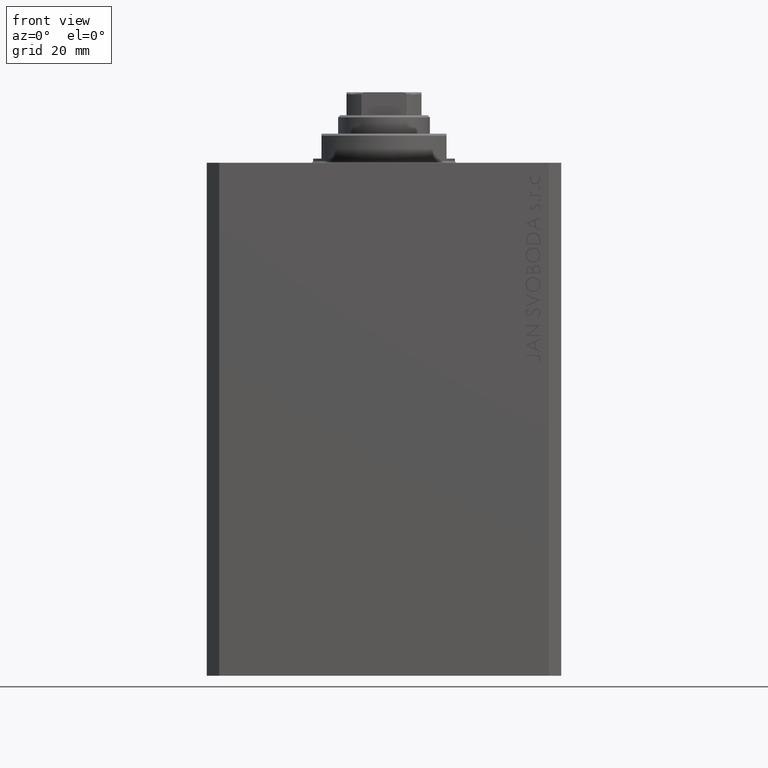
[diagram: clean part render]
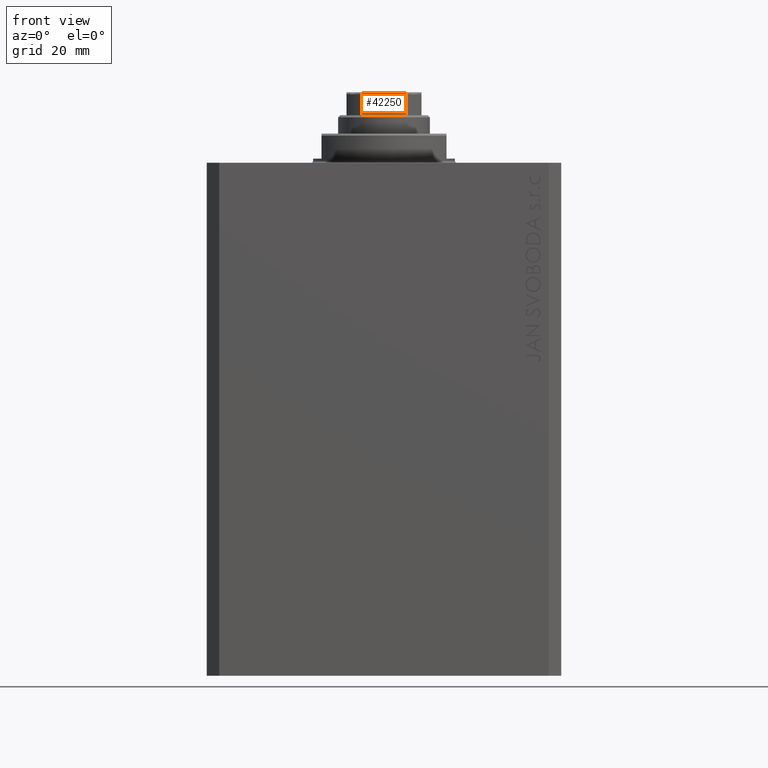
[diagram: same view with one face highlighted and labeled with its STEP entity id]
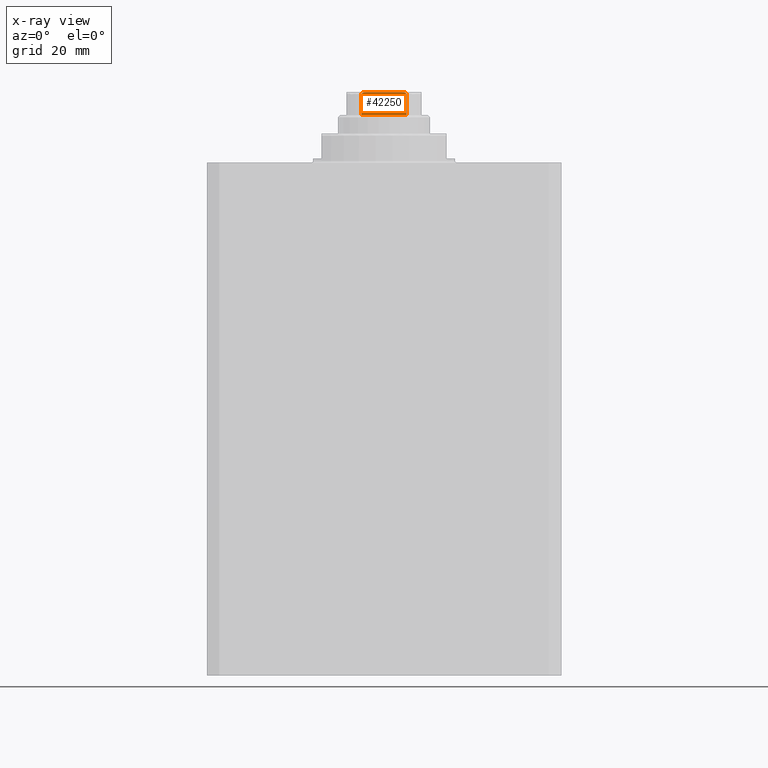
[diagram: x-ray of the same camera — body ghosted, the highlighted face saturated]
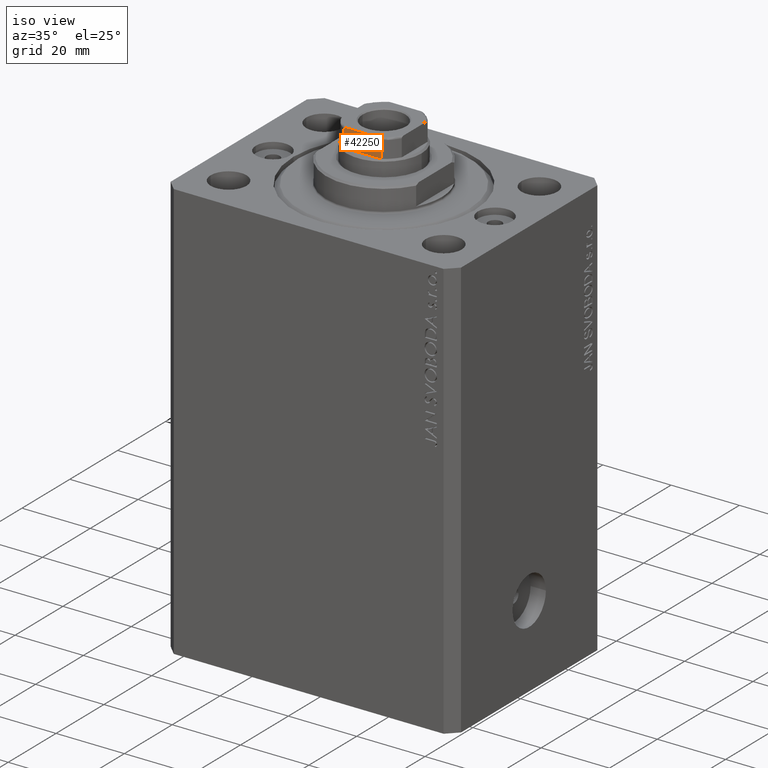
[diagram: same view with one face highlighted and labeled with its STEP entity id]
A machine part, front view. The second image highlights one B-rep face of the part: STEP entity #42250.
The next image is the same camera in x-ray: the body ghosted, the highlighted face saturated — about 0% of this face is hidden behind the body in this view.
A second angle (iso view) of the same face is appended — the face is thin or edge-on in the first view.
In plain terms, the highlighted planar face has unit normal (0, 1, 0).
Its self-contained STEP definition (entity closure, byte-faithful):
#1509 = CARTESIAN_POINT ( 'NONE',  ( 4.778533838065915695, -9.000000000000001776, 128.4778291476469860 ) ) ;
#1736 = CARTESIAN_POINT ( 'NONE',  ( 4.358898943540671311, -9.000000000000001776, 128.5000000000000000 ) ) ;
#3171 = LINE ( 'NONE', #12607, #22009 ) ;
#3395 = VERTEX_POINT ( 'NONE', #17999 ) ;
#4383 = EDGE_CURVE ( 'NONE', #9551, #31868, #3171, .T. ) ;
#4391 = B_SPLINE_CURVE_WITH_KNOTS ( 'NONE', 3,
 ( #18607, #8486, #5342, #4891, #8933, #25536, #32699, #8708, #39208, #26201 ),
 .UNSPECIFIED., .F., .F.,
 ( 4, 2, 2, 2, 4 ),
 ( 0.000000000000000000, 0.0006221106941441050886, 0.0009331660412161576872, 0.001088693714752184908, 0.001244221388288212129 ),
 .UNSPECIFIED. ) ;
#4891 = CARTESIAN_POINT ( 'NONE',  ( -5.074490744525473218, -8.999999999999998224, 128.3787200784332754 ) ) ;
#5342 = CARTESIAN_POINT ( 'NONE',  ( -4.775913644518293033, -9.000000000000001776, 128.4781460743083414 ) ) ;
#6006 = EDGE_CURVE ( 'NONE', #33273, #9551, #23713, .T. ) ;
#6590 = VECTOR ( 'NONE', #39326, 1000.000000000000000 ) ;
#7163 = LINE ( 'NONE', #13693, #13023 ) ;
#7547 = AXIS2_PLACEMENT_3D ( 'NONE', #16573, #13666, #30020 ) ;
#8374 = LINE ( 'NONE', #25648, #6590 ) ;
#8486 = CARTESIAN_POINT ( 'NONE',  ( -4.569272810556663345, -9.000000000000003553, 128.5000000000000568 ) ) ;
#8633 = CARTESIAN_POINT ( 'NONE',  ( -5.408326913195988794, -8.999999999999998224, 128.0000000000000000 ) ) ;
#8708 = CARTESIAN_POINT ( 'NONE',  ( -5.390945448132514528, -9.000000000000005329, 128.1054816538971011 ) ) ;
#8933 = CARTESIAN_POINT ( 'NONE',  ( -5.173732970196579295, -9.000000000000003553, 128.3331808643798979 ) ) ;
#9177 = CARTESIAN_POINT ( 'NONE',  ( 5.408326913195988794, -8.999999999999998224, 123.0000000000000000 ) ) ;
#9354 = CARTESIAN_POINT ( 'NONE',  ( -8.999999999999998224, -9.000000000000001776, 123.0000000000000000 ) ) ;
#9551 = VERTEX_POINT ( 'NONE', #9177 ) ;
#9684 = DIRECTION ( 'NONE',  ( -0.000000000000000000, -0.000000000000000000, 1.000000000000000000 ) ) ;
#12278 = CARTESIAN_POINT ( 'NONE',  ( 5.335664150027727537, -8.999999999999998224, 128.1951843380012974 ) ) ;
#12607 = CARTESIAN_POINT ( 'NONE',  ( 5.408326913195988794, -8.999999999999998224, -0.001000000000001000089 ) ) ;
#12880 = B_SPLINE_CURVE_WITH_KNOTS ( 'NONE', 3,
 ( #35815, #32889, #25512, #12278, #35375, #22361, #25737, #1509, #15192, #1736 ),
 .UNSPECIFIED., .F., .F.,
 ( 4, 2, 2, 2, 4 ),
 ( 0.000000000000000000, 0.0001582447020887985415, 0.0003164894041775970831, 0.0006329788083552442563, 0.001265957616710536218 ),
 .UNSPECIFIED. ) ;
#13023 = VECTOR ( 'NONE', #27361, 1000.000000000000000 ) ;
#13186 = DIRECTION ( 'NONE',  ( 1.000000000000000000, 0.000000000000000000, 0.000000000000000000 ) ) ;
#13567 = ORIENTED_EDGE ( 'NONE', *, *, #32029, .F. ) ;
#13666 = DIRECTION ( 'NONE',  ( 0.000000000000000000, 1.000000000000000000, 0.000000000000000000 ) ) ;
#13693 = CARTESIAN_POINT ( 'NONE',  ( -8.999999999999998224, -9.000000000000001776, 128.5000000000000000 ) ) ;
#13818 = CARTESIAN_POINT ( 'NONE',  ( -5.408326913195988794, -8.999999999999998224, 123.0000000000000000 ) ) ;
#15192 = CARTESIAN_POINT ( 'NONE',  ( 4.569278586016982224, -9.000000000000003553, 128.5000000000000284 ) ) ;
#16573 = CARTESIAN_POINT ( 'NONE',  ( -8.999999999999998224, -9.000000000000001776, 128.5000000000000000 ) ) ;
#17800 = ORIENTED_EDGE ( 'NONE', *, *, #32388, .F. ) ;
#17999 = CARTESIAN_POINT ( 'NONE',  ( 4.358898943540671311, -9.000000000000001776, 128.5000000000000000 ) ) ;
#18211 = CARTESIAN_POINT ( 'NONE',  ( 5.408326913195988794, -8.999999999999998224, 128.0000000000000000 ) ) ;
#18607 = CARTESIAN_POINT ( 'NONE',  ( -4.358898943540671311, -9.000000000000001776, 128.5000000000000000 ) ) ;
#18897 = EDGE_CURVE ( 'NONE', #31868, #3395, #12880, .T. ) ;
#22009 = VECTOR ( 'NONE', #9684, 1000.000000000000000 ) ;
#22361 = CARTESIAN_POINT ( 'NONE',  ( 5.174818616237112145, -9.000000000000003553, 128.3325218846533460 ) ) ;
#23713 = LINE ( 'NONE', #9354, #33497 ) ;
#23750 = ORIENTED_EDGE ( 'NONE', *, *, #18897, .T. ) ;
#24322 = ORIENTED_EDGE ( 'NONE', *, *, #43764, .T. ) ;
#25512 = CARTESIAN_POINT ( 'NONE',  ( 5.390954572107323983, -9.000000000000005329, 128.1053628521399901 ) ) ;
#25536 = CARTESIAN_POINT ( 'NONE',  ( -5.297634495023404000, -9.000000000000007105, 128.2344228052780863 ) ) ;
#25648 = CARTESIAN_POINT ( 'NONE',  ( -5.408326913195988794, -8.999999999999998224, -0.001000000000001000089 ) ) ;
#25737 = CARTESIAN_POINT ( 'NONE',  ( 5.077896145217236423, -9.000000000000003553, 128.3773016776067095 ) ) ;
#25910 = VERTEX_POINT ( 'NONE', #8633 ) ;
#26201 = CARTESIAN_POINT ( 'NONE',  ( -5.408326913195988794, -8.999999999999998224, 128.0000000000000000 ) ) ;
#27361 = DIRECTION ( 'NONE',  ( 1.000000000000000000, 0.000000000000000000, 0.000000000000000000 ) ) ;
#29659 = VERTEX_POINT ( 'NONE', #36974 ) ;
#30020 = DIRECTION ( 'NONE',  ( 0.000000000000000000, -0.000000000000000000, 1.000000000000000000 ) ) ;
#31868 = VERTEX_POINT ( 'NONE', #18211 ) ;
#32029 = EDGE_CURVE ( 'NONE', #29659, #3395, #7163, .T. ) ;
#32388 = EDGE_CURVE ( 'NONE', #33273, #25910, #8374, .T. ) ;
#32699 = CARTESIAN_POINT ( 'NONE',  ( -5.335288102212742523, -9.000000000000003553, 128.1956905402762459 ) ) ;
#32889 = CARTESIAN_POINT ( 'NONE',  ( 5.408326913195991459, -9.000000000000001776, 128.0535720727335445 ) ) ;
#33273 = VERTEX_POINT ( 'NONE', #13818 ) ;
#33497 = VECTOR ( 'NONE', #13186, 1000.000000000000000 ) ;
#33599 = FACE_OUTER_BOUND ( 'NONE', #36786, .T. ) ;
#35054 = ORIENTED_EDGE ( 'NONE', *, *, #4383, .T. ) ;
#35375 = CARTESIAN_POINT ( 'NONE',  ( 5.298186678102081437, -9.000000000000001776, 128.2338781215005099 ) ) ;
#35815 = CARTESIAN_POINT ( 'NONE',  ( 5.408326913195988794, -8.999999999999998224, 128.0000000000000000 ) ) ;
#36786 = EDGE_LOOP ( 'NONE', ( #13567, #24322, #17800, #44281, #35054, #23750 ) ) ;
#36974 = CARTESIAN_POINT ( 'NONE',  ( -4.358898943540671311, -9.000000000000001776, 128.5000000000000000 ) ) ;
#39208 = CARTESIAN_POINT ( 'NONE',  ( -5.408326913195990571, -9.000000000000003553, 128.0537434673188386 ) ) ;
#39326 = DIRECTION ( 'NONE',  ( -0.000000000000000000, -0.000000000000000000, 1.000000000000000000 ) ) ;
#40341 = PLANE ( 'NONE',  #7547 ) ;
#42250 = ADVANCED_FACE ( 'NONE', ( #33599 ), #40341, .F. ) ;
#43764 = EDGE_CURVE ( 'NONE', #29659, #25910, #4391, .T. ) ;
#44281 = ORIENTED_EDGE ( 'NONE', *, *, #6006, .T. ) ;